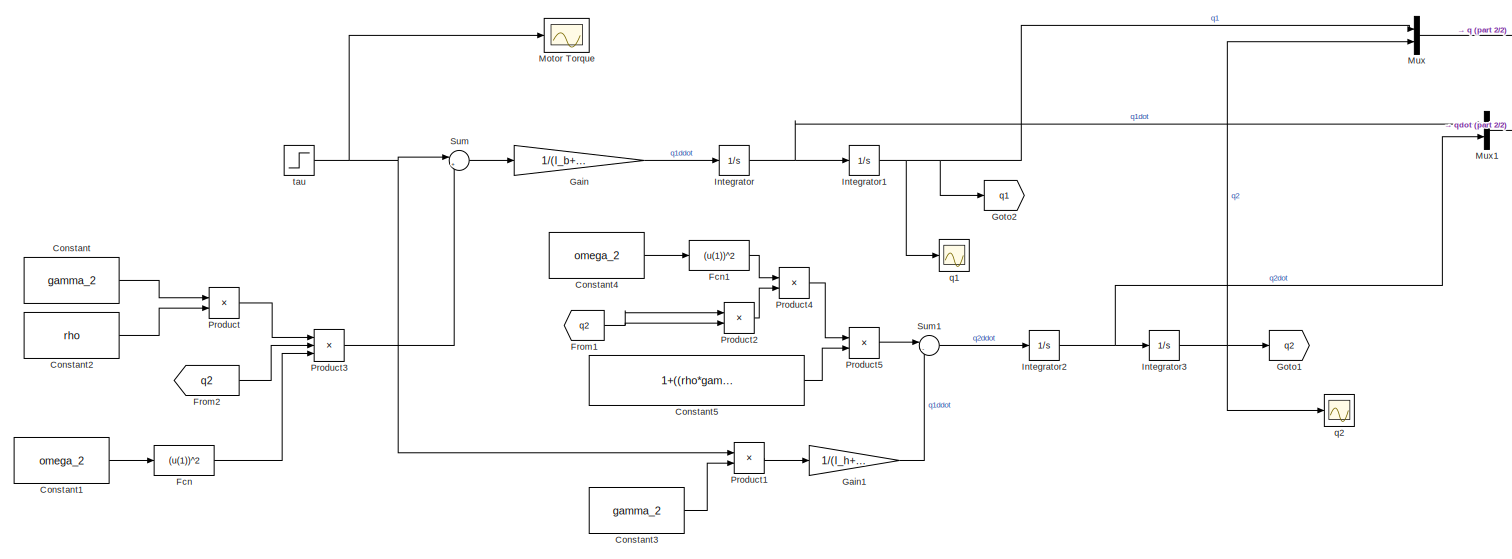
[diagram: root canvas - part 1/2, most of the canvas]
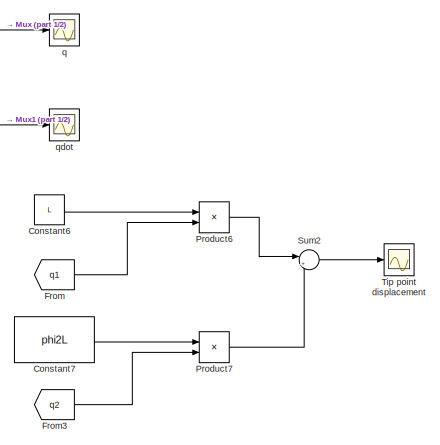
[diagram: root canvas - part 2/2, right side, full height]
MODEL slx_845dc22424a9
KIND model
CONFIG AbsTol = auto
CONFIG EnableMultiTasking = off
CONFIG FixedStep = auto
CONFIG MaxStep = 1e-4
CONFIG MinStep = auto
CONFIG RelTol = 1e-4
CONFIG SampleTimeConstraint = Unconstrained
CONFIG SolverName = ode45
CONFIG StartTime = 0.0
CONFIG StopTime = 1
BLOCK [Constant] Constant
  Value = gamma_2
BLOCK [Constant] Constant1
  Value = omega_2
BLOCK [Constant] Constant2
  Value = rho
BLOCK [Constant] Constant3
  Value = gamma_2
BLOCK [Constant] Constant4
  Value = omega_2
BLOCK [Constant] Constant5
  Value = 1+((rho*gamma_2^2)/(I_h+I_b))
BLOCK [Constant] Constant6
  Value = L
BLOCK [Constant] Constant7
  Value = phi2L
BLOCK [Fcn] Fcn
  Expr = (u(1))^2
BLOCK [Fcn] Fcn1
  Expr = (u(1))^2
BLOCK [From] From
  GotoTag = q1
  TagVisibility = global
BLOCK [From] From1
  GotoTag = q2
  TagVisibility = global
BLOCK [From] From2
  GotoTag = q2
  TagVisibility = global
BLOCK [From] From3
  GotoTag = q2
  TagVisibility = global
BLOCK [Gain] Gain
  Gain = 1/(I_b+I_h)
BLOCK [Gain] Gain1
  Gain = 1/(I_h+I_b)
BLOCK [Goto] Goto1
  GotoTag = q2
  TagVisibility = global
BLOCK [Goto] Goto2
  GotoTag = q1
  TagVisibility = global
BLOCK [Integrator] Integrator
BLOCK [Integrator] Integrator1
BLOCK [Integrator] Integrator2
BLOCK [Integrator] Integrator3
BLOCK [Scope] Motor Torque
  Floating = off
  NumInputPorts = 1
  ScopeSpecificationString = Simulink.scopes.TimeScopeBlockCfg('CurrentConfiguration', extmgr.ConfigurationSet(extmgr.Configuration('Core','General UI',true),extmgr.Configuration('Core','Source UI',true),extmgr.Configuration('Sources','WiredSimulink',true,'DataLoggingVariableName','ScopeData2'),extmgr.Configuration('Visuals','Time Domain',true,'SerializedDisplays',{struct('MinYLimReal','-1.25','MaxYLimReal','11.25','YLabelRea...<+1348ch>
BLOCK [Mux] Mux
  DisplayOption = bar
  Inputs = 2
BLOCK [Mux] Mux1
  DisplayOption = bar
  Inputs = 2
BLOCK [Product] Product
BLOCK [Product] Product1
BLOCK [Product] Product2
BLOCK [Product] Product3
  Inputs = 3
BLOCK [Product] Product4
BLOCK [Product] Product5
BLOCK [Product] Product6
BLOCK [Product] Product7
BLOCK [Sum] Sum
  Inputs = |+-
BLOCK [Sum] Sum1
  Inputs = |--
BLOCK [Sum] Sum2
  Inputs = |++
BLOCK [Scope] Tip point displacement
  Floating = off
  NumInputPorts = 1
  ScopeSpecificationString = Simulink.scopes.TimeScopeBlockCfg('CurrentConfiguration', extmgr.ConfigurationSet(extmgr.Configuration('Core','General UI',true),extmgr.Configuration('Core','Source UI',true),extmgr.Configuration('Sources','WiredSimulink',true,'DataLoggingVariableName','ScopeData1'),extmgr.Configuration('Visuals','Time Domain',true,'SerializedDisplays',{struct('MinYLimReal','-0.05194','MaxYLimReal','0.46742','YLab...<+1390ch>
BLOCK [Scope] q
  Floating = off
  NumInputPorts = 1
  ScopeSpecificationString = Simulink.scopes.TimeScopeBlockCfg('CurrentConfiguration', extmgr.ConfigurationSet(extmgr.Configuration('Core','General UI',true),extmgr.Configuration('Core','Source UI',true),extmgr.Configuration('Sources','WiredSimulink',true),extmgr.Configuration('Visuals','Time Domain',true,'SerializedDisplays',{struct('MinYLimReal','-0.41458','MaxYLimReal','3.73125','YLabelReal','','MinYLimMag','0.00000','MaxY...<+1354ch>
BLOCK [Scope] q1
  Floating = off
  NumInputPorts = 1
  ScopeSpecificationString = Simulink.scopes.TimeScopeBlockCfg('CurrentConfiguration', extmgr.ConfigurationSet(extmgr.Configuration('Core','General UI',true),extmgr.Configuration('Core','Source UI',true),extmgr.Configuration('Sources','WiredSimulink',true,'DataLoggingVariableName','ScopeData4'),extmgr.Configuration('Visuals','Time Domain',true,'SerializedDisplays',{struct('MinYLimReal','-395.45416','MaxYLimReal','3559.08748',...<+1384ch>
BLOCK [Scope] q2
  Floating = off
  NumInputPorts = 1
  ScopeSpecificationString = Simulink.scopes.TimeScopeBlockCfg('CurrentConfiguration', extmgr.ConfigurationSet(extmgr.Configuration('Core','General UI',true),extmgr.Configuration('Core','Source UI',true),extmgr.Configuration('Sources','WiredSimulink',true,'DataLoggingVariableName','ScopeData5'),extmgr.Configuration('Visuals','Time Domain',true,'SerializedDisplays',{struct('MinYLimReal','-0.000000000057','MaxYLimReal','0.00000...<+1417ch>
BLOCK [Scope] qdot
  Floating = off
  NumInputPorts = 1
  ScopeSpecificationString = Simulink.scopes.TimeScopeBlockCfg('CurrentConfiguration', extmgr.ConfigurationSet(extmgr.Configuration('Core','General UI',true),extmgr.Configuration('Core','Source UI',true),extmgr.Configuration('Sources','WiredSimulink',true,'DataLoggingVariableName','ScopeData1'),extmgr.Configuration('Visuals','Time Domain',true,'SerializedDisplays',{struct('MinYLimReal','-0.41667','MaxYLimReal','3.75','YLabelR...<+1360ch>
BLOCK [Step] tau
  After = 0
  Before = 0.25
  SampleTime = 0
LINE Constant1:1 -> Fcn:1
LINE Constant2:1 -> Product:2
LINE Constant3:1 -> Product1:2
LINE Constant4:1 -> Fcn1:1
LINE Constant5:1 -> Product5:2
LINE Constant6:1 -> Product6:1
LINE Constant7:1 -> Product7:1
LINE Constant:1 -> Product:1
LINE Fcn1:1 -> Product4:1
LINE Fcn:1 -> Product3:3
NET From1:1 -> Product2:1, Product2:2
LINE From2:1 -> Product3:2
LINE From3:1 -> Product7:2
LINE From:1 -> Product6:2
LINE Gain1:1 -> Sum1:2
LINE Gain:1 -> Integrator:1
NET Integrator1:1 -> Goto2:1, Mux:1, q1:1
NET Integrator2:1 -> Integrator3:1, Mux1:2
NET Integrator3:1 -> Goto1:1, Mux:2, q2:1
NET Integrator:1 -> Integrator1:1, Mux1:1
LINE Mux1:1 -> qdot:1
LINE Mux:1 -> q:1
LINE Product1:1 -> Gain1:1
LINE Product2:1 -> Product4:2
LINE Product3:1 -> Sum:2
LINE Product4:1 -> Product5:1
LINE Product5:1 -> Sum1:1
LINE Product6:1 -> Sum2:1
LINE Product7:1 -> Sum2:2
LINE Product:1 -> Product3:1
LINE Sum1:1 -> Integrator2:1
LINE Sum2:1 -> Tip point displacement:1
LINE Sum:1 -> Gain:1
NET tau:1 -> Motor Torque:1, Product1:1, Sum:1
note: NET lines group one-source signal fan-out (src -> all destinations, sorted); 1:1 wires keep LINE
